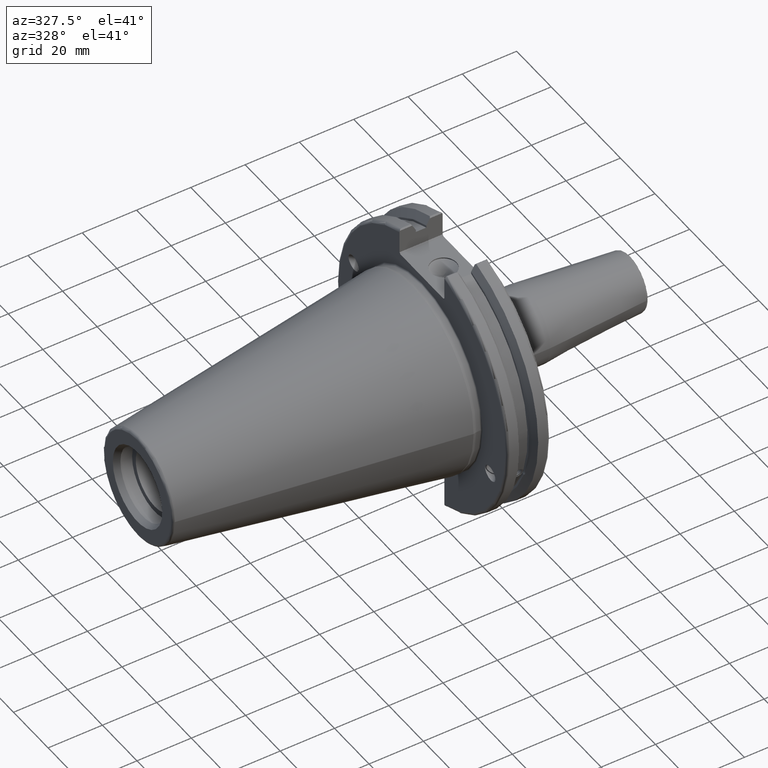
[diagram: clean part render]
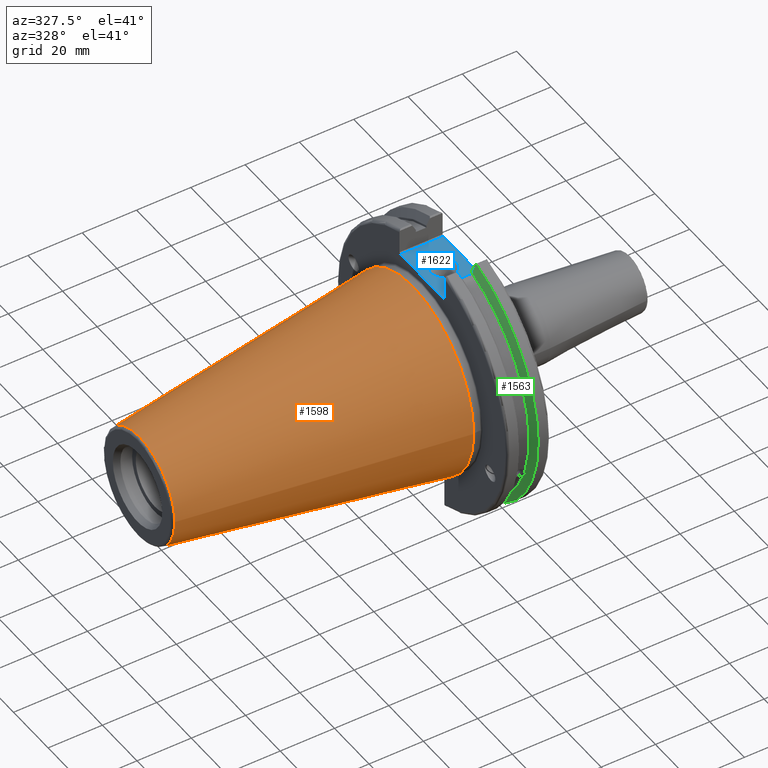
[diagram: same view with three faces highlighted in distinct colors, each labeled with its STEP entity id]
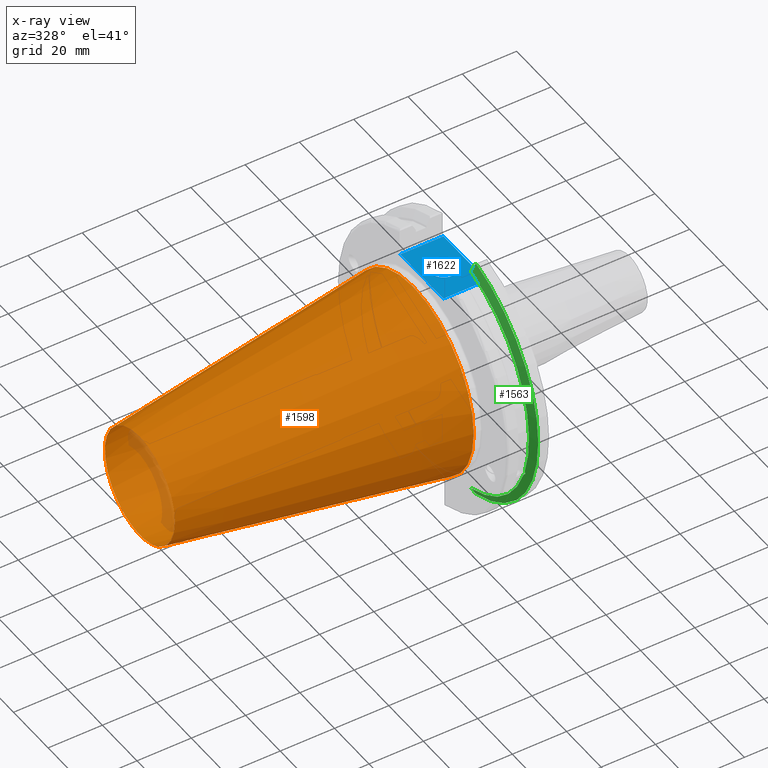
[diagram: x-ray of the same camera — body ghosted, the three highlighted faces saturated]
A machine part, auxiliary view with three faces highlighted in distinct colors.
The next image is the same camera in x-ray (body ghosted, the three faces saturated) — at least one of them is partly hidden behind the body in this view.
Their STEP definitions:

[orange] entity #1598 — the highlighted conical surface has half-angle 8.297 deg.
#234=FACE_OUTER_BOUND('',#346,.T.);
#346=EDGE_LOOP('',(#1388,#1389,#1390,#1391,#1392));
#458=LINE('',#3168,#556);
#556=VECTOR('',#2183,27.5166666666666);
#636=CIRCLE('',#1779,20.233121911427);
#637=CIRCLE('',#1780,20.233121911427);
#641=CIRCLE('',#1786,34.925);
#799=VERTEX_POINT('',#3155);
#800=VERTEX_POINT('',#3156);
#803=VERTEX_POINT('',#3166);
#1011=EDGE_CURVE('',#799,#800,#636,.T.);
#1012=EDGE_CURVE('',#800,#799,#637,.T.);
#1016=EDGE_CURVE('',#803,#803,#641,.T.);
#1017=EDGE_CURVE('',#803,#800,#458,.T.);
#1388=ORIENTED_EDGE('',*,*,#1016,.F.);
#1389=ORIENTED_EDGE('',*,*,#1017,.T.);
#1390=ORIENTED_EDGE('',*,*,#1011,.F.);
#1391=ORIENTED_EDGE('',*,*,#1012,.F.);
#1392=ORIENTED_EDGE('',*,*,#1017,.F.);
#1529=CONICAL_SURFACE('',#1785,27.5166666666666,0.14481249823894);
#1598=ADVANCED_FACE('',(#234),#1529,.T.);
#1779=AXIS2_PLACEMENT_3D('',#3157,#2167,#2168);
#1780=AXIS2_PLACEMENT_3D('',#3158,#2169,#2170);
#1785=AXIS2_PLACEMENT_3D('',#3165,#2179,#2180);
#1786=AXIS2_PLACEMENT_3D('',#3167,#2181,#2182);
#2167=DIRECTION('center_axis',(-1.,0.,0.));
#2168=DIRECTION('ref_axis',(0.,-1.,3.06161699786838E-17));
#2169=DIRECTION('center_axis',(-1.,0.,0.));
#2170=DIRECTION('ref_axis',(0.,-1.,3.06161699786838E-17));
#2179=DIRECTION('center_axis',(1.,0.,0.));
#2180=DIRECTION('ref_axis',(0.,1.,0.));
#2181=DIRECTION('center_axis',(1.,0.,0.));
#2182=DIRECTION('ref_axis',(0.,0.,-1.));
#2183=DIRECTION('',(-0.989532981063281,0.144306893071729,1.76724974695192E-17));
#3155=CARTESIAN_POINT('',(-100.744306893072,-2.47784279855872E-15,20.233121911427));
#3156=CARTESIAN_POINT('',(-100.744306893072,-20.233121911427,-2.47784279855872E-15));
#3157=CARTESIAN_POINT('Origin',(-100.744306893072,0.,-3.09730349819841E-15));
#3158=CARTESIAN_POINT('Origin',(-100.744306893072,0.,-3.09730349819841E-15));
#3165=CARTESIAN_POINT('Origin',(-50.8,0.,0.));
#3166=CARTESIAN_POINT('',(-8.88178419700125E-15,-34.925,-4.27707894602213E-15));
#3167=CARTESIAN_POINT('Origin',(0.,0.,0.));
#3168=CARTESIAN_POINT('',(-50.8,-27.5166666666666,-3.3698197756538E-15));

[blue] entity #1622 — the highlighted planar face has unit normal (0, 0, 1).
#66=PLANE('',#1819);
#97=FACE_BOUND('',#371,.T.);
#258=FACE_OUTER_BOUND('',#370,.T.);
#370=EDGE_LOOP('',(#1500,#1501,#1502,#1503));
#371=EDGE_LOOP('',(#1504));
#390=LINE('',#2441,#488);
#430=LINE('',#2940,#528);
#461=LINE('',#3175,#559);
#463=LINE('',#3178,#561);
#488=VECTOR('',#1929,10.);
#528=VECTOR('',#2097,10.);
#559=VECTOR('',#2194,10.);
#561=VECTOR('',#2198,10.);
#644=CIRCLE('',#1804,4.7625);
#684=VERTEX_POINT('',#2438);
#685=VERTEX_POINT('',#2440);
#761=VERTEX_POINT('',#2937);
#762=VERTEX_POINT('',#2939);
#808=VERTEX_POINT('',#3208);
#854=EDGE_CURVE('',#684,#685,#390,.T.);
#954=EDGE_CURVE('',#761,#762,#430,.T.);
#1020=EDGE_CURVE('',#685,#761,#461,.T.);
#1022=EDGE_CURVE('',#762,#684,#463,.T.);
#1034=EDGE_CURVE('',#808,#808,#644,.T.);
#1500=ORIENTED_EDGE('',*,*,#1020,.F.);
#1501=ORIENTED_EDGE('',*,*,#854,.F.);
#1502=ORIENTED_EDGE('',*,*,#1022,.F.);
#1503=ORIENTED_EDGE('',*,*,#954,.F.);
#1504=ORIENTED_EDGE('',*,*,#1034,.T.);
#1622=ADVANCED_FACE('',(#258,#97),#66,.T.);
#1804=AXIS2_PLACEMENT_3D('',#3209,#2230,#2231);
#1819=AXIS2_PLACEMENT_3D('',#3225,#2261,#2262);
#1929=DIRECTION('',(0.,-1.,0.));
#2097=DIRECTION('',(0.,1.,0.));
#2194=DIRECTION('',(-1.,1.31581988103722E-16,0.));
#2198=DIRECTION('',(1.,0.,0.));
#2230=DIRECTION('center_axis',(0.,0.,-1.));
#2231=DIRECTION('ref_axis',(1.,0.,0.));
#2261=DIRECTION('center_axis',(0.,0.,1.));
#2262=DIRECTION('ref_axis',(1.,0.,0.));
#2438=CARTESIAN_POINT('',(19.05,12.45,37.719));
#2440=CARTESIAN_POINT('',(19.05,-12.45,37.719));
#2441=CARTESIAN_POINT('',(19.05,0.,37.719));
#2937=CARTESIAN_POINT('',(3.175,-12.45,37.719));
#2939=CARTESIAN_POINT('',(3.175,12.45,37.719));
#2940=CARTESIAN_POINT('',(3.175,24.60625,37.719));
#3175=CARTESIAN_POINT('',(10.63125,-12.45,37.719));
#3178=CARTESIAN_POINT('',(19.06875,12.45,37.719));
#3208=CARTESIAN_POINT('',(6.3645,-5.83238038093927E-16,37.719));
#3209=CARTESIAN_POINT('Origin',(11.127,0.,37.719));
#3225=CARTESIAN_POINT('Origin',(18.0875,0.,37.719));

[green] entity #1563 — the highlighted conical surface has half-angle 60 deg.
#15=(
BOUNDED_CURVE()
B_SPLINE_CURVE(2,(#2660,#2661,#2662),.UNSPECIFIED.,.F.,.F.)
B_SPLINE_CURVE_WITH_KNOTS((3,3),(0.,0.275823910674144),.UNSPECIFIED.)
CURVE()
GEOMETRIC_REPRESENTATION_ITEM()
RATIONAL_B_SPLINE_CURVE((1.,1.00038235575579,1.00012873637156))
REPRESENTATION_ITEM('')
);
#16=(
BOUNDED_CURVE()
B_SPLINE_CURVE(2,(#2664,#2665,#2666),.UNSPECIFIED.,.F.,.F.)
B_SPLINE_CURVE_WITH_KNOTS((3,3),(0.,0.0648240472898149),.UNSPECIFIED.)
CURVE()
GEOMETRIC_REPRESENTATION_ITEM()
RATIONAL_B_SPLINE_CURVE((1.,1.00011477674811,1.00019140645905))
REPRESENTATION_ITEM('')
);
#17=(
BOUNDED_CURVE()
B_SPLINE_CURVE(2,(#2670,#2671,#2672),.UNSPECIFIED.,.F.,.F.)
B_SPLINE_CURVE_WITH_KNOTS((3,3),(0.325260944932422,0.390084992222202),
 .UNSPECIFIED.)
CURVE()
GEOMETRIC_REPRESENTATION_ITEM()
RATIONAL_B_SPLINE_CURVE((1.00019140645944,1.00011477674834,1.))
REPRESENTATION_ITEM('')
);
#18=(
BOUNDED_CURVE()
B_SPLINE_CURVE(2,(#2674,#2675,#2676),.UNSPECIFIED.,.F.,.F.)
B_SPLINE_CURVE_WITH_KNOTS((3,3),(0.0558332664505639,0.331657177124505),
 .UNSPECIFIED.)
CURVE()
GEOMETRIC_REPRESENTATION_ITEM()
RATIONAL_B_SPLINE_CURVE((1.00012873636973,1.00038235575037,1.))
REPRESENTATION_ITEM('')
);
#107=B_SPLINE_CURVE_WITH_KNOTS('',3,(#2569,#2570,#2571,#2572,#2573,#2574,
#2575,#2576),.UNSPECIFIED.,.F.,.F.,(4,2,2,4),(0.42671286835872,0.441644498666905,
0.480313313223129,0.518982127779352),.UNSPECIFIED.);
#111=B_SPLINE_CURVE_WITH_KNOTS('',3,(#2631,#2632,#2633,#2634,#2635,#2636,
#2637,#2638),.UNSPECIFIED.,.F.,.F.,(4,2,2,4),(0.518982127779352,0.557650942335576,
0.5963197568918,0.611251387199985),.UNSPECIFIED.);
#199=FACE_OUTER_BOUND('',#303,.T.);
#303=EDGE_LOOP('',(#1184,#1185,#1186,#1187,#1188,#1189,#1190,#1191,#1192));
#605=CIRCLE('',#1714,46.4219772964944);
#606=CIRCLE('',#1715,49.2125);
#607=CIRCLE('',#1716,46.4219772964944);
#701=VERTEX_POINT('',#2566);
#702=VERTEX_POINT('',#2568);
#709=VERTEX_POINT('',#2629);
#715=VERTEX_POINT('',#2657);
#716=VERTEX_POINT('',#2659);
#717=VERTEX_POINT('',#2663);
#718=VERTEX_POINT('',#2667);
#719=VERTEX_POINT('',#2669);
#720=VERTEX_POINT('',#2673);
#876=EDGE_CURVE('',#702,#701,#107,.T.);
#884=EDGE_CURVE('',#701,#709,#111,.T.);
#892=EDGE_CURVE('',#709,#715,#605,.T.);
#893=EDGE_CURVE('',#715,#716,#15,.T.);
#894=EDGE_CURVE('',#717,#716,#16,.T.);
#895=EDGE_CURVE('',#718,#717,#606,.T.);
#896=EDGE_CURVE('',#719,#718,#17,.T.);
#897=EDGE_CURVE('',#719,#720,#18,.T.);
#898=EDGE_CURVE('',#720,#702,#607,.T.);
#1184=ORIENTED_EDGE('',*,*,#876,.T.);
#1185=ORIENTED_EDGE('',*,*,#884,.T.);
#1186=ORIENTED_EDGE('',*,*,#892,.T.);
#1187=ORIENTED_EDGE('',*,*,#893,.T.);
#1188=ORIENTED_EDGE('',*,*,#894,.F.);
#1189=ORIENTED_EDGE('',*,*,#895,.F.);
#1190=ORIENTED_EDGE('',*,*,#896,.F.);
#1191=ORIENTED_EDGE('',*,*,#897,.T.);
#1192=ORIENTED_EDGE('',*,*,#898,.T.);
#1525=CONICAL_SURFACE('',#1713,47.8172386482472,1.0471975511966);
#1563=ADVANCED_FACE('',(#199),#1525,.T.);
#1713=AXIS2_PLACEMENT_3D('',#2656,#1987,#1988);
#1714=AXIS2_PLACEMENT_3D('',#2658,#1989,#1990);
#1715=AXIS2_PLACEMENT_3D('',#2668,#1991,#1992);
#1716=AXIS2_PLACEMENT_3D('',#2677,#1993,#1994);
#1987=DIRECTION('center_axis',(1.,0.,0.));
#1988=DIRECTION('ref_axis',(0.,-1.,-1.22464679914735E-16));
#1989=DIRECTION('center_axis',(1.,0.,0.));
#1990=DIRECTION('ref_axis',(0.,0.,-1.));
#1991=DIRECTION('center_axis',(1.,0.,0.));
#1992=DIRECTION('ref_axis',(0.,0.,-1.));
#1993=DIRECTION('center_axis',(1.,0.,0.));
#1994=DIRECTION('ref_axis',(0.,0.,-1.));
#2566=CARTESIAN_POINT('',(13.227,-43.923494649906,-15.9868446375166));
#2568=CARTESIAN_POINT('',(13.042,-43.9096390749305,-15.0646464421033));
#2569=CARTESIAN_POINT('Ctrl Pts',(13.042,-43.9096390749305,-15.0646464421033));
#2570=CARTESIAN_POINT('Ctrl Pts',(13.0589815609661,-43.9250360001461,-15.1104047527575));
#2571=CARTESIAN_POINT('Ctrl Pts',(13.0750132459668,-43.9385582852181,-15.1564111356409));
#2572=CARTESIAN_POINT('Ctrl Pts',(13.1287132615496,-43.9797830409459,-15.3217566390708));
#2573=CARTESIAN_POINT('Ctrl Pts',(13.1648838933644,-43.9989016655819,-15.4570249042868));
#2574=CARTESIAN_POINT('Ctrl Pts',(13.2141913174802,-43.9931221605126,-15.7289849146254));
#2575=CARTESIAN_POINT('Ctrl Pts',(13.227,-43.9675796948952,-15.8657219718732));
#2576=CARTESIAN_POINT('Ctrl Pts',(13.227,-43.923494649906,-15.9868446375166));
#2629=CARTESIAN_POINT('',(13.042,-43.3201030900029,-16.6843832486479));
#2631=CARTESIAN_POINT('Ctrl Pts',(13.227,-43.923494649906,-15.9868446375166));
#2632=CARTESIAN_POINT('Ctrl Pts',(13.227,-43.8794096049169,-16.10796730316));
#2633=CARTESIAN_POINT('Ctrl Pts',(13.2141913174802,-43.8110833825828,-16.2291323464527));
#2634=CARTESIAN_POINT('Ctrl Pts',(13.1648838933644,-43.6406982153492,-16.441180795372));
#2635=CARTESIAN_POINT('Ctrl Pts',(13.1287132615496,-43.5391037343221,-16.5325130832406));
#2636=CARTESIAN_POINT('Ctrl Pts',(13.0750132459668,-43.4012416983557,-16.6326763251437));
#2637=CARTESIAN_POINT('Ctrl Pts',(13.0589815609661,-43.3613106941341,-16.6592273018006));
#2638=CARTESIAN_POINT('Ctrl Pts',(13.042,-43.3201030900029,-16.6843832486479));
#2656=CARTESIAN_POINT('Origin',(13.8475545170244,0.,0.));
#2657=CARTESIAN_POINT('',(13.042,-12.95,-44.5791147973604));
#2658=CARTESIAN_POINT('Origin',(13.042,0.,0.));
#2659=CARTESIAN_POINT('',(14.3747103943757,-12.95,-46.9780755322917));
#2660=CARTESIAN_POINT('Ctrl Pts',(13.042,-12.95,-44.5791147973604));
#2661=CARTESIAN_POINT('Ctrl Pts',(13.6908955094606,-12.95,-45.7494966802493));
#2662=CARTESIAN_POINT('Ctrl Pts',(14.3747103943757,-12.95,-46.9780755322917));
#2663=CARTESIAN_POINT('',(14.6531090340487,-13.4317035994433,-47.3440544806494));
#2664=CARTESIAN_POINT('Ctrl Pts',(14.6531090340487,-13.4317035994433,-47.3440544806494));
#2665=CARTESIAN_POINT('Ctrl Pts',(14.5128310333618,-13.1896660169967,-47.1601640966265));
#2666=CARTESIAN_POINT('Ctrl Pts',(14.3747103943757,-12.95,-46.9780755322917));
#2667=CARTESIAN_POINT('',(14.6531090340487,-13.4317035994433,47.3440544806494));
#2668=CARTESIAN_POINT('Origin',(14.6531090340487,0.,0.));
#2669=CARTESIAN_POINT('',(14.3747103943757,-12.95,46.9780755322917));
#2670=CARTESIAN_POINT('Ctrl Pts',(14.3747103943757,-12.95,46.9780755322917));
#2671=CARTESIAN_POINT('Ctrl Pts',(14.5128310333618,-13.1896660169966,47.1601640966265));
#2672=CARTESIAN_POINT('Ctrl Pts',(14.6531090340487,-13.4317035994433,47.3440544806494));
#2673=CARTESIAN_POINT('',(13.042,-12.95,44.5791147973604));
#2674=CARTESIAN_POINT('Ctrl Pts',(14.3747103943757,-12.95,46.9780755322917));
#2675=CARTESIAN_POINT('Ctrl Pts',(13.6908955094594,-12.95,45.7494966802471));
#2676=CARTESIAN_POINT('Ctrl Pts',(13.042,-12.95,44.5791147973604));
#2677=CARTESIAN_POINT('Origin',(13.042,0.,0.));